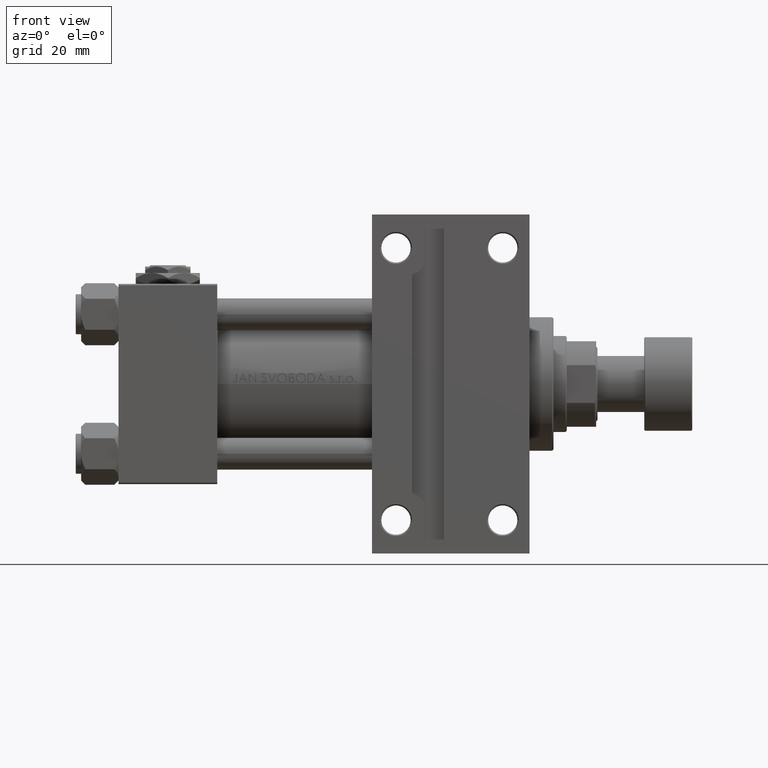
[diagram: clean part render]
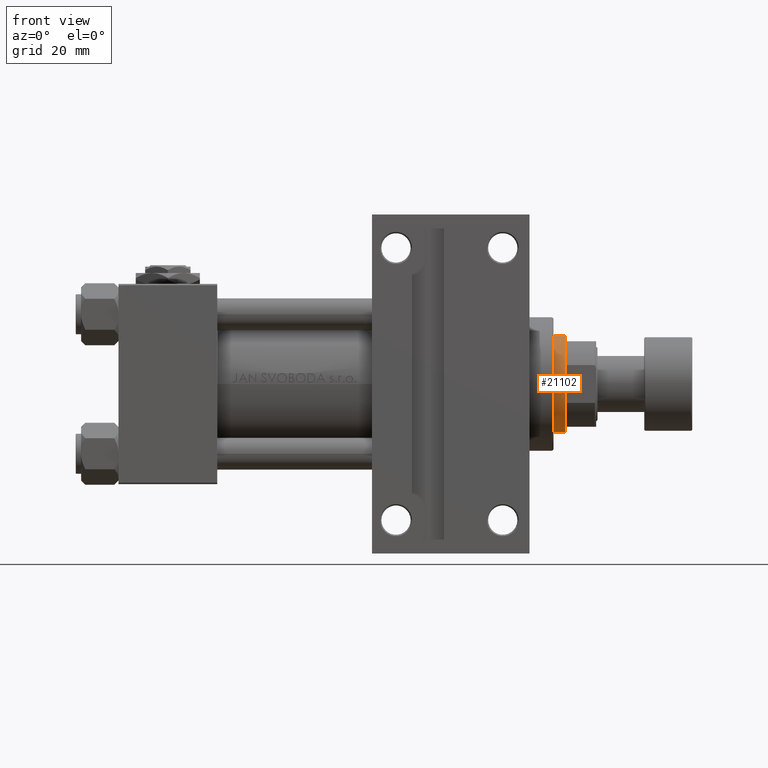
[diagram: same view with one face highlighted and labeled with its STEP entity id]
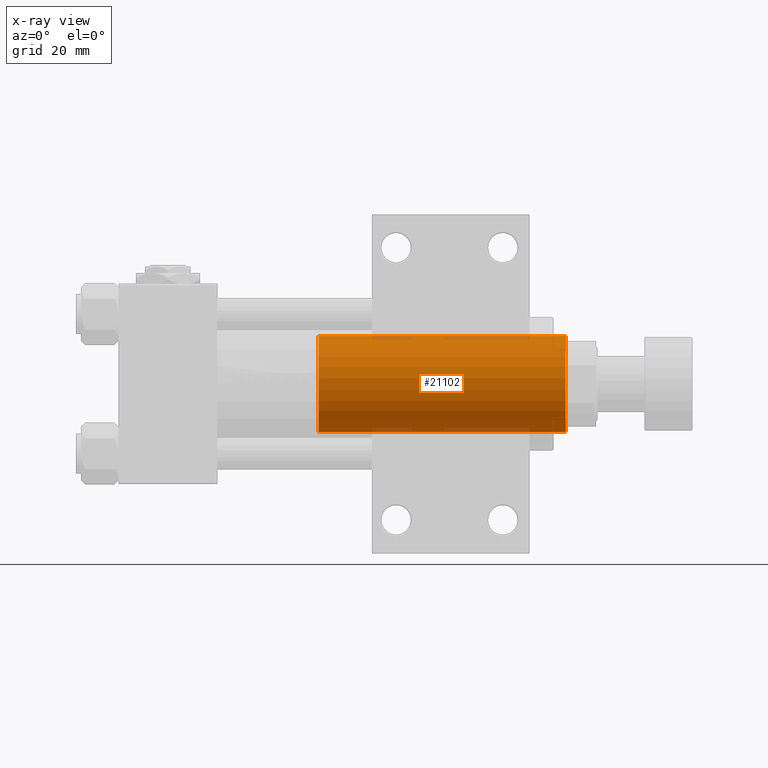
[diagram: x-ray of the same camera — body ghosted, the highlighted face saturated]
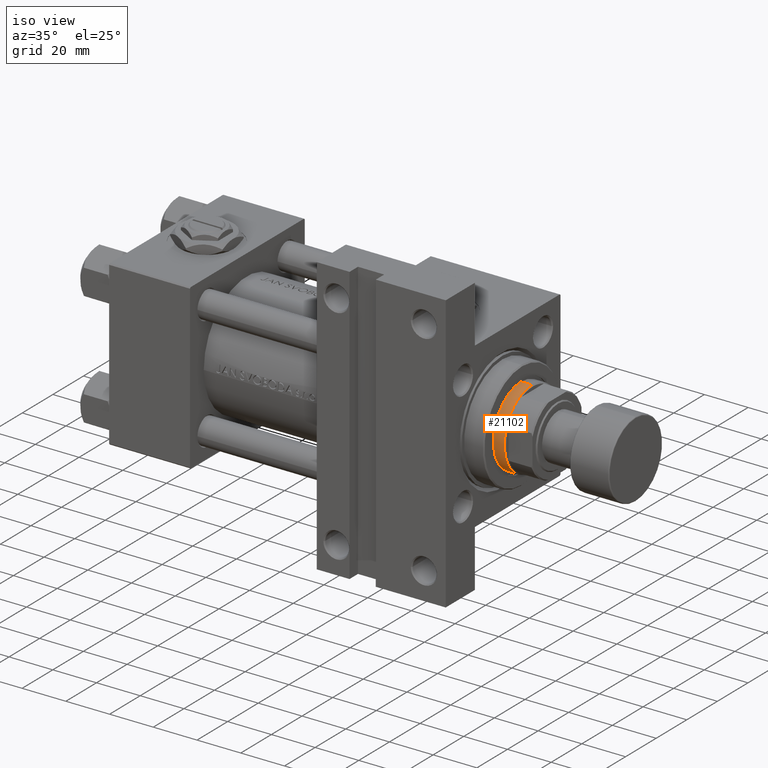
[diagram: same view with one face highlighted and labeled with its STEP entity id]
A machine part, front view. The second image highlights one B-rep face of the part: STEP entity #21102.
The next image is the same camera in x-ray: the body ghosted, the highlighted face saturated — about 5% of this face is hidden behind the body in this view.
A second angle (iso view) of the same face is appended — the face is thin or edge-on in the first view.
In plain terms, the highlighted cylindrical surface (partial cylindrical patch) has radius 18 mm, axis along (-1, 0, 0).
Its self-contained STEP definition (entity closure, byte-faithful):
#486 = AXIS2_PLACEMENT_3D ( 'NONE', #21129, #5889, #21380 ) ;
#2496 = CARTESIAN_POINT ( 'NONE',  ( -18.00000000000000000, 0.000000000000000000, 131.0000000000000000 ) ) ;
#3582 = CIRCLE ( 'NONE', #31983, 18.00000000000000000 ) ;
#5454 = VERTEX_POINT ( 'NONE', #22331 ) ;
#5889 = DIRECTION ( 'NONE',  ( 0.000000000000000000, 0.000000000000000000, -1.000000000000000000 ) ) ;
#5986 = DIRECTION ( 'NONE',  ( -0.000000000000000000, -0.000000000000000000, -1.000000000000000000 ) ) ;
#8146 = ORIENTED_EDGE ( 'NONE', *, *, #34990, .T. ) ;
#9048 = DIRECTION ( 'NONE',  ( -1.000000000000000000, 0.000000000000000000, 0.000000000000000000 ) ) ;
#10034 = CARTESIAN_POINT ( 'NONE',  ( -18.00000000000000000, 0.000000000000000000, 38.00000000000000000 ) ) ;
#10125 = VECTOR ( 'NONE', #14179, 1000.000000000000000 ) ;
#10761 = CARTESIAN_POINT ( 'NONE',  ( 18.00000000000000000, 2.204364238465235033E-15, 130.5000000000000568 ) ) ;
#11219 = DIRECTION ( 'NONE',  ( 1.000000000000000000, 0.000000000000000000, 0.000000000000000000 ) ) ;
#13603 = FACE_OUTER_BOUND ( 'NONE', #35632, .T. ) ;
#14179 = DIRECTION ( 'NONE',  ( -0.000000000000000000, -0.000000000000000000, -1.000000000000000000 ) ) ;
#17075 = CARTESIAN_POINT ( 'NONE',  ( -18.00000000000000000, 0.000000000000000000, 130.5000000000000568 ) ) ;
#18286 = CIRCLE ( 'NONE', #486, 18.00000000000000000 ) ;
#20151 = ORIENTED_EDGE ( 'NONE', *, *, #33885, .F. ) ;
#21102 = ADVANCED_FACE ( 'NONE', ( #13603 ), #43824, .T. ) ;
#21129 = CARTESIAN_POINT ( 'NONE',  ( 0.000000000000000000, 0.000000000000000000, 130.5000000000000568 ) ) ;
#21380 = DIRECTION ( 'NONE',  ( 1.000000000000000000, 0.000000000000000000, 0.000000000000000000 ) ) ;
#22331 = CARTESIAN_POINT ( 'NONE',  ( 18.00000000000000000, 2.204364238465235033E-15, 38.00000000000000000 ) ) ;
#22926 = DIRECTION ( 'NONE',  ( 0.000000000000000000, 0.000000000000000000, 1.000000000000000000 ) ) ;
#24437 = EDGE_CURVE ( 'NONE', #5454, #31459, #3582, .T. ) ;
#25286 = CARTESIAN_POINT ( 'NONE',  ( 0.000000000000000000, 0.000000000000000000, 131.0000000000000000 ) ) ;
#25374 = AXIS2_PLACEMENT_3D ( 'NONE', #25286, #5986, #9048 ) ;
#29430 = LINE ( 'NONE', #49199, #42627 ) ;
#30238 = VERTEX_POINT ( 'NONE', #17075 ) ;
#31459 = VERTEX_POINT ( 'NONE', #10034 ) ;
#31983 = AXIS2_PLACEMENT_3D ( 'NONE', #41949, #22926, #11219 ) ;
#33885 = EDGE_CURVE ( 'NONE', #30238, #31459, #44637, .T. ) ;
#34580 = EDGE_CURVE ( 'NONE', #30238, #48756, #18286, .T. ) ;
#34990 = EDGE_CURVE ( 'NONE', #48756, #5454, #29430, .T. ) ;
#35460 = ORIENTED_EDGE ( 'NONE', *, *, #34580, .T. ) ;
#35632 = EDGE_LOOP ( 'NONE', ( #35460, #8146, #42675, #20151 ) ) ;
#41949 = CARTESIAN_POINT ( 'NONE',  ( 0.000000000000000000, 0.000000000000000000, 38.00000000000000000 ) ) ;
#42627 = VECTOR ( 'NONE', #45646, 1000.000000000000000 ) ;
#42675 = ORIENTED_EDGE ( 'NONE', *, *, #24437, .T. ) ;
#43824 = CYLINDRICAL_SURFACE ( 'NONE', #25374, 18.00000000000000000 ) ;
#44637 = LINE ( 'NONE', #2496, #10125 ) ;
#45646 = DIRECTION ( 'NONE',  ( -0.000000000000000000, -0.000000000000000000, -1.000000000000000000 ) ) ;
#48756 = VERTEX_POINT ( 'NONE', #10761 ) ;
#49199 = CARTESIAN_POINT ( 'NONE',  ( 18.00000000000000000, 2.204364238465235033E-15, 131.0000000000000000 ) ) ;